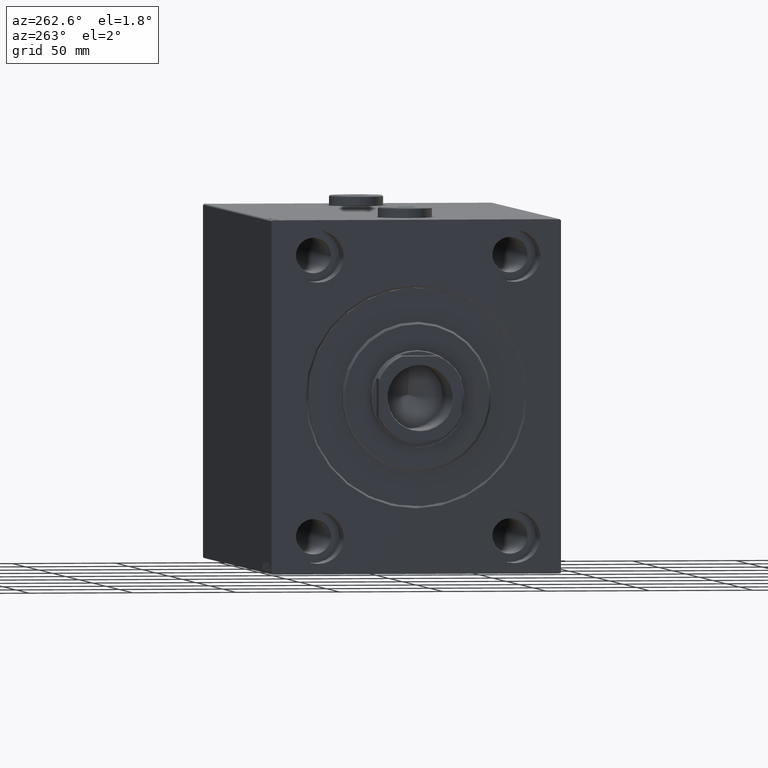
[diagram: clean part render]
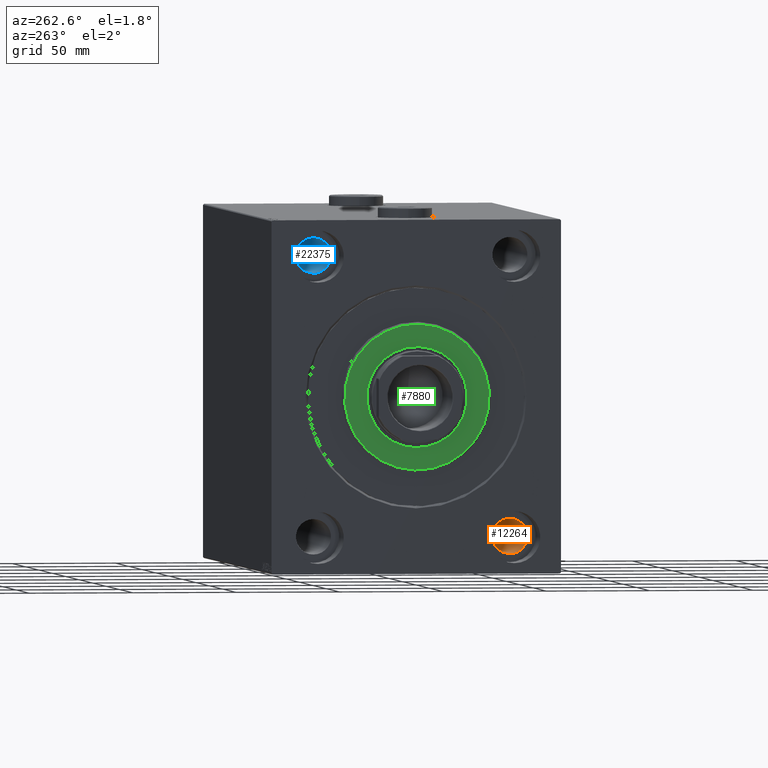
[diagram: same view with three faces highlighted in distinct colors, each labeled with its STEP entity id]
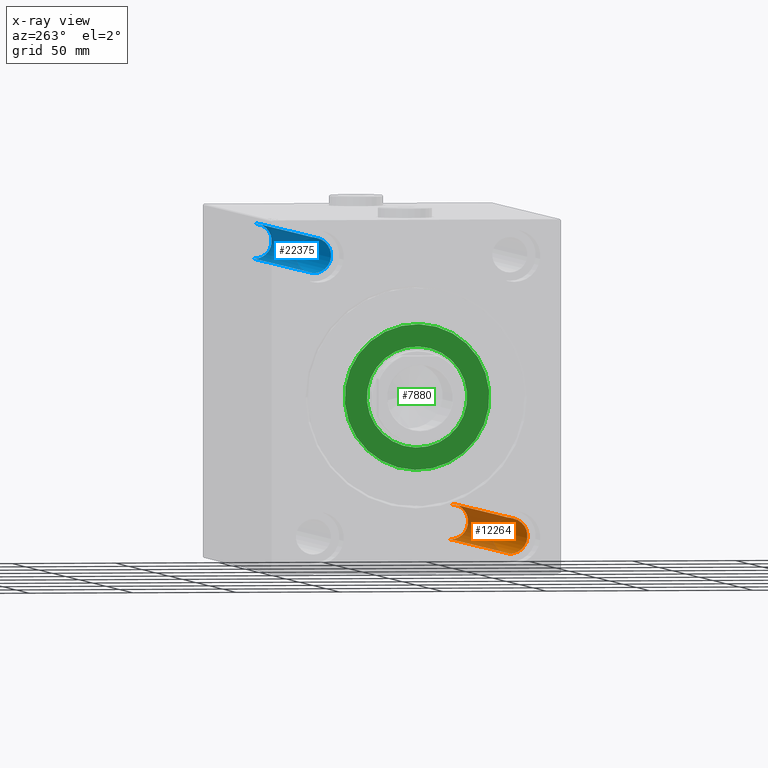
[diagram: x-ray of the same camera — body ghosted, the three highlighted faces saturated]
A machine part, auxiliary view with three faces highlighted in distinct colors.
The next image is the same camera in x-ray (body ghosted, the three faces saturated) — at least one of them is partly hidden behind the body in this view.
Their STEP definitions:

[orange] entity #12264 — the highlighted cylindrical surface (edge-blend (fillet) strip) has radius 8.5 mm, axis along (-1, -0, -0).
#586 = CARTESIAN_POINT ( 'NONE',  ( 17.00000000000001421, -47.49999999999999289, -59.00000000000001421 ) ) ;
#837 = DIRECTION ( 'NONE',  ( -1.000000000000000000, -0.000000000000000000, -0.000000000000000000 ) ) ;
#1252 = AXIS2_PLACEMENT_3D ( 'NONE', #26221, #36526, #11554 ) ;
#2068 = DIRECTION ( 'NONE',  ( -1.000000000000000000, -0.000000000000000000, -0.000000000000000000 ) ) ;
#2218 = DIRECTION ( 'NONE',  ( 0.000000000000000000, 0.000000000000000000, -1.000000000000000000 ) ) ;
#3128 = CARTESIAN_POINT ( 'NONE',  ( 17.00000000000001421, -47.49999999999999289, -67.50000000000000000 ) ) ;
#4288 = LINE ( 'NONE', #18274, #36172 ) ;
#8801 = EDGE_CURVE ( 'NONE', #40574, #39532, #4288, .T. ) ;
#10110 = AXIS2_PLACEMENT_3D ( 'NONE', #23305, #19654, #2218 ) ;
#10915 = VECTOR ( 'NONE', #2068, 1000.000000000000000 ) ;
#11554 = DIRECTION ( 'NONE',  ( 0.000000000000000000, 0.000000000000000000, 1.000000000000000000 ) ) ;
#12264 = ADVANCED_FACE ( 'NONE', ( #19111 ), #22096, .F. ) ;
#14866 = VERTEX_POINT ( 'NONE', #19592 ) ;
#15643 = EDGE_CURVE ( 'NONE', #14866, #40574, #35002, .T. ) ;
#17414 = EDGE_CURVE ( 'NONE', #14866, #34400, #44005, .T. ) ;
#17777 = DIRECTION ( 'NONE',  ( -1.000000000000000000, 0.000000000000000000, 0.000000000000000000 ) ) ;
#17986 = CARTESIAN_POINT ( 'NONE',  ( 238.0000000000000000, -47.49999999999999289, -59.00000000000001421 ) ) ;
#18274 = CARTESIAN_POINT ( 'NONE',  ( 255.0000000000000000, -47.49999999999999289, -59.00000000000001421 ) ) ;
#18986 = CARTESIAN_POINT ( 'NONE',  ( 17.00000000000001421, -47.49999999999999289, -76.00000000000000000 ) ) ;
#19111 = FACE_OUTER_BOUND ( 'NONE', #30794, .T. ) ;
#19592 = CARTESIAN_POINT ( 'NONE',  ( 238.0000000000000000, -47.49999999999999289, -76.00000000000000000 ) ) ;
#19654 = DIRECTION ( 'NONE',  ( -1.000000000000000000, -0.000000000000000000, -0.000000000000000000 ) ) ;
#21224 = DIRECTION ( 'NONE',  ( 0.000000000000000000, 0.000000000000000000, 1.000000000000000000 ) ) ;
#21748 = EDGE_CURVE ( 'NONE', #34400, #39532, #38081, .T. ) ;
#22096 = CYLINDRICAL_SURFACE ( 'NONE', #1252, 8.499999999999992895 ) ;
#23305 = CARTESIAN_POINT ( 'NONE',  ( 238.0000000000000000, -47.49999999999999289, -67.50000000000000000 ) ) ;
#23376 = CARTESIAN_POINT ( 'NONE',  ( 255.0000000000000000, -47.49999999999999289, -76.00000000000000000 ) ) ;
#24021 = ORIENTED_EDGE ( 'NONE', *, *, #17414, .T. ) ;
#26221 = CARTESIAN_POINT ( 'NONE',  ( 255.0000000000000000, -47.49999999999999289, -67.50000000000000000 ) ) ;
#30794 = EDGE_LOOP ( 'NONE', ( #32632, #24021, #36139, #36979 ) ) ;
#32632 = ORIENTED_EDGE ( 'NONE', *, *, #15643, .F. ) ;
#34400 = VERTEX_POINT ( 'NONE', #18986 ) ;
#35002 = CIRCLE ( 'NONE', #10110, 8.499999999999992895 ) ;
#36139 = ORIENTED_EDGE ( 'NONE', *, *, #21748, .T. ) ;
#36172 = VECTOR ( 'NONE', #837, 1000.000000000000000 ) ;
#36526 = DIRECTION ( 'NONE',  ( -1.000000000000000000, -0.000000000000000000, -0.000000000000000000 ) ) ;
#36979 = ORIENTED_EDGE ( 'NONE', *, *, #8801, .F. ) ;
#37358 = AXIS2_PLACEMENT_3D ( 'NONE', #3128, #17777, #21224 ) ;
#38081 = CIRCLE ( 'NONE', #37358, 8.499999999999992895 ) ;
#39532 = VERTEX_POINT ( 'NONE', #586 ) ;
#40574 = VERTEX_POINT ( 'NONE', #17986 ) ;
#44005 = LINE ( 'NONE', #23376, #10915 ) ;

[blue] entity #22375 — the highlighted cylindrical surface (edge-blend (fillet) strip) has radius 8.5 mm, axis along (-1, -0, -0).
#1476 = CARTESIAN_POINT ( 'NONE',  ( 17.00000000000001421, 47.50000000000000711, 67.50000000000000000 ) ) ;
#1940 = EDGE_CURVE ( 'NONE', #15745, #14357, #2886, .T. ) ;
#2537 = CARTESIAN_POINT ( 'NONE',  ( 17.00000000000001421, 47.50000000000000711, 59.00000000000000000 ) ) ;
#2886 = LINE ( 'NONE', #16873, #4630 ) ;
#3270 = AXIS2_PLACEMENT_3D ( 'NONE', #1476, #33114, #36781 ) ;
#3803 = CARTESIAN_POINT ( 'NONE',  ( 255.0000000000000000, 47.50000000000000711, 59.00000000000000000 ) ) ;
#4630 = VECTOR ( 'NONE', #30851, 1000.000000000000000 ) ;
#6220 = ORIENTED_EDGE ( 'NONE', *, *, #28975, .F. ) ;
#8096 = AXIS2_PLACEMENT_3D ( 'NONE', #27951, #38273, #35059 ) ;
#10348 = EDGE_CURVE ( 'NONE', #30058, #14357, #41359, .T. ) ;
#10685 = CARTESIAN_POINT ( 'NONE',  ( 238.0000000000000000, 47.50000000000000711, 76.00000000000001421 ) ) ;
#10720 = VERTEX_POINT ( 'NONE', #27503 ) ;
#12942 = CARTESIAN_POINT ( 'NONE',  ( 17.00000000000001421, 47.50000000000000711, 76.00000000000001421 ) ) ;
#13785 = VECTOR ( 'NONE', #28539, 1000.000000000000000 ) ;
#13979 = CYLINDRICAL_SURFACE ( 'NONE', #8096, 8.500000000000007105 ) ;
#14357 = VERTEX_POINT ( 'NONE', #12942 ) ;
#14749 = CIRCLE ( 'NONE', #38925, 8.500000000000007105 ) ;
#15713 = EDGE_CURVE ( 'NONE', #10720, #30058, #27872, .T. ) ;
#15745 = VERTEX_POINT ( 'NONE', #10685 ) ;
#15933 = DIRECTION ( 'NONE',  ( 0.000000000000000000, 0.000000000000000000, -1.000000000000000000 ) ) ;
#16873 = CARTESIAN_POINT ( 'NONE',  ( 255.0000000000000000, 47.50000000000000711, 76.00000000000001421 ) ) ;
#17607 = ORIENTED_EDGE ( 'NONE', *, *, #15713, .T. ) ;
#21946 = ORIENTED_EDGE ( 'NONE', *, *, #10348, .T. ) ;
#22375 = ADVANCED_FACE ( 'NONE', ( #28396 ), #13979, .F. ) ;
#27503 = CARTESIAN_POINT ( 'NONE',  ( 238.0000000000000000, 47.50000000000000711, 59.00000000000000000 ) ) ;
#27872 = LINE ( 'NONE', #3803, #13785 ) ;
#27951 = CARTESIAN_POINT ( 'NONE',  ( 255.0000000000000000, 47.50000000000000711, 67.50000000000000000 ) ) ;
#28396 = FACE_OUTER_BOUND ( 'NONE', #33117, .T. ) ;
#28539 = DIRECTION ( 'NONE',  ( -1.000000000000000000, -0.000000000000000000, -0.000000000000000000 ) ) ;
#28975 = EDGE_CURVE ( 'NONE', #10720, #15745, #14749, .T. ) ;
#30058 = VERTEX_POINT ( 'NONE', #2537 ) ;
#30851 = DIRECTION ( 'NONE',  ( -1.000000000000000000, -0.000000000000000000, -0.000000000000000000 ) ) ;
#33114 = DIRECTION ( 'NONE',  ( -1.000000000000000000, 0.000000000000000000, 0.000000000000000000 ) ) ;
#33117 = EDGE_LOOP ( 'NONE', ( #6220, #17607, #21946, #43226 ) ) ;
#33342 = CARTESIAN_POINT ( 'NONE',  ( 238.0000000000000000, 47.50000000000000711, 67.50000000000000000 ) ) ;
#35059 = DIRECTION ( 'NONE',  ( 0.000000000000000000, 0.000000000000000000, 1.000000000000000000 ) ) ;
#36781 = DIRECTION ( 'NONE',  ( 0.000000000000000000, 0.000000000000000000, 1.000000000000000000 ) ) ;
#37010 = DIRECTION ( 'NONE',  ( -1.000000000000000000, -0.000000000000000000, -0.000000000000000000 ) ) ;
#38273 = DIRECTION ( 'NONE',  ( -1.000000000000000000, -0.000000000000000000, -0.000000000000000000 ) ) ;
#38925 = AXIS2_PLACEMENT_3D ( 'NONE', #33342, #37010, #15933 ) ;
#41359 = CIRCLE ( 'NONE', #3270, 8.500000000000007105 ) ;
#43226 = ORIENTED_EDGE ( 'NONE', *, *, #1940, .F. ) ;

[green] entity #7880 — the highlighted planar face has unit normal (-1, 0, 0).
#4821 = CIRCLE ( 'NONE', #17300, 24.25000000000000000 ) ;
#4870 = DIRECTION ( 'NONE',  ( 0.000000000000000000, 0.000000000000000000, -1.000000000000000000 ) ) ;
#5048 = CARTESIAN_POINT ( 'NONE',  ( 3.000000000000000000, 0.000000000000000000, 35.00000000000002842 ) ) ;
#5761 = DIRECTION ( 'NONE',  ( -1.000000000000000000, 0.000000000000000000, -0.000000000000000000 ) ) ;
#7411 = CARTESIAN_POINT ( 'NONE',  ( 3.000000000000000000, 0.000000000000000000, 0.000000000000000000 ) ) ;
#7601 = CARTESIAN_POINT ( 'NONE',  ( 3.000000000000000000, 2.969768487932331287E-15, -24.25000000000000000 ) ) ;
#7880 = ADVANCED_FACE ( 'NONE', ( #26271, #12068 ), #22829, .T. ) ;
#9033 = ORIENTED_EDGE ( 'NONE', *, *, #27836, .T. ) ;
#9209 = VERTEX_POINT ( 'NONE', #16602 ) ;
#11567 = VERTEX_POINT ( 'NONE', #7601 ) ;
#12068 = FACE_BOUND ( 'NONE', #42452, .T. ) ;
#14792 = ORIENTED_EDGE ( 'NONE', *, *, #42080, .T. ) ;
#16602 = CARTESIAN_POINT ( 'NONE',  ( 3.000000000000000000, 4.347496136973104859E-15, -35.00000000000002842 ) ) ;
#16983 = AXIS2_PLACEMENT_3D ( 'NONE', #29162, #43138, #4870 ) ;
#17300 = AXIS2_PLACEMENT_3D ( 'NONE', #22728, #5761, #44487 ) ;
#17364 = VERTEX_POINT ( 'NONE', #5048 ) ;
#18728 = DIRECTION ( 'NONE',  ( 1.000000000000000000, -0.000000000000000000, 0.000000000000000000 ) ) ;
#19150 = AXIS2_PLACEMENT_3D ( 'NONE', #7411, #31935, #38362 ) ;
#19164 = CARTESIAN_POINT ( 'NONE',  ( 3.000000000000000000, 0.000000000000000000, 0.000000000000000000 ) ) ;
#19852 = AXIS2_PLACEMENT_3D ( 'NONE', #40039, #18728, #30174 ) ;
#21557 = ORIENTED_EDGE ( 'NONE', *, *, #25827, .T. ) ;
#22600 = DIRECTION ( 'NONE',  ( 0.000000000000000000, 0.000000000000000000, -1.000000000000000000 ) ) ;
#22728 = CARTESIAN_POINT ( 'NONE',  ( 3.000000000000000000, 0.000000000000000000, 0.000000000000000000 ) ) ;
#22829 = PLANE ( 'NONE',  #28197 ) ;
#25827 = EDGE_CURVE ( 'NONE', #17364, #9209, #36730, .T. ) ;
#26271 = FACE_OUTER_BOUND ( 'NONE', #28681, .T. ) ;
#27836 = EDGE_CURVE ( 'NONE', #9209, #17364, #38141, .T. ) ;
#28197 = AXIS2_PLACEMENT_3D ( 'NONE', #19164, #40026, #22600 ) ;
#28681 = EDGE_LOOP ( 'NONE', ( #21557, #9033 ) ) ;
#29122 = EDGE_CURVE ( 'NONE', #11567, #35864, #44767, .T. ) ;
#29162 = CARTESIAN_POINT ( 'NONE',  ( 3.000000000000000000, 0.000000000000000000, 0.000000000000000000 ) ) ;
#30174 = DIRECTION ( 'NONE',  ( 0.000000000000000000, 0.000000000000000000, -1.000000000000000000 ) ) ;
#31935 = DIRECTION ( 'NONE',  ( -1.000000000000000000, 0.000000000000000000, -0.000000000000000000 ) ) ;
#33770 = CARTESIAN_POINT ( 'NONE',  ( 3.000000000000000000, 0.000000000000000000, 24.25000000000000000 ) ) ;
#35864 = VERTEX_POINT ( 'NONE', #33770 ) ;
#36730 = CIRCLE ( 'NONE', #16983, 35.00000000000002842 ) ;
#38141 = CIRCLE ( 'NONE', #19852, 35.00000000000002842 ) ;
#38362 = DIRECTION ( 'NONE',  ( 0.000000000000000000, 0.000000000000000000, -1.000000000000000000 ) ) ;
#40026 = DIRECTION ( 'NONE',  ( 1.000000000000000000, -0.000000000000000000, 0.000000000000000000 ) ) ;
#40039 = CARTESIAN_POINT ( 'NONE',  ( 3.000000000000000000, 0.000000000000000000, 0.000000000000000000 ) ) ;
#42080 = EDGE_CURVE ( 'NONE', #35864, #11567, #4821, .T. ) ;
#42452 = EDGE_LOOP ( 'NONE', ( #14792, #45162 ) ) ;
#43138 = DIRECTION ( 'NONE',  ( 1.000000000000000000, -0.000000000000000000, 0.000000000000000000 ) ) ;
#44487 = DIRECTION ( 'NONE',  ( 0.000000000000000000, 0.000000000000000000, -1.000000000000000000 ) ) ;
#44767 = CIRCLE ( 'NONE', #19150, 24.25000000000000000 ) ;
#45162 = ORIENTED_EDGE ( 'NONE', *, *, #29122, .T. ) ;